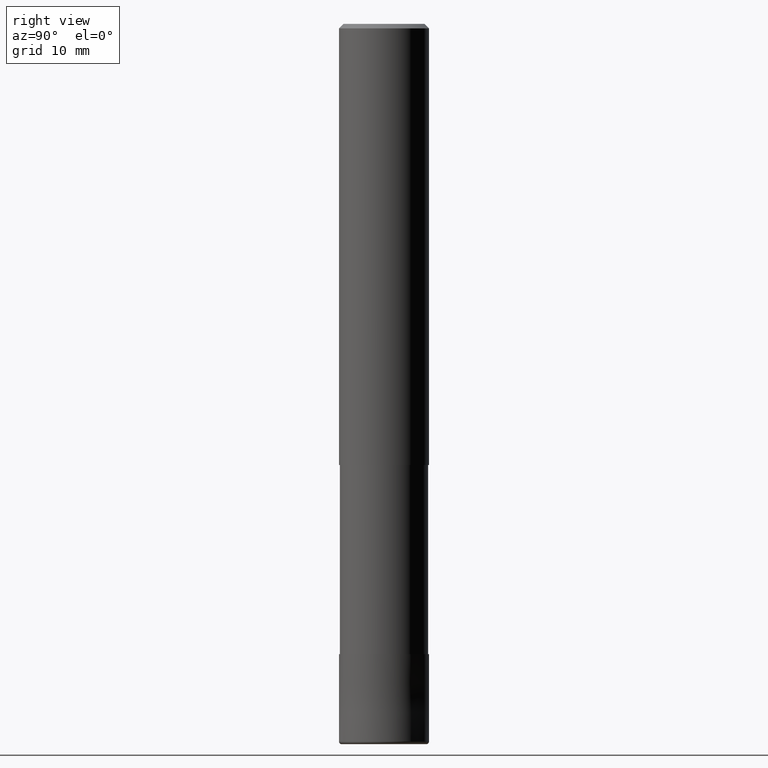
[diagram: clean part render]
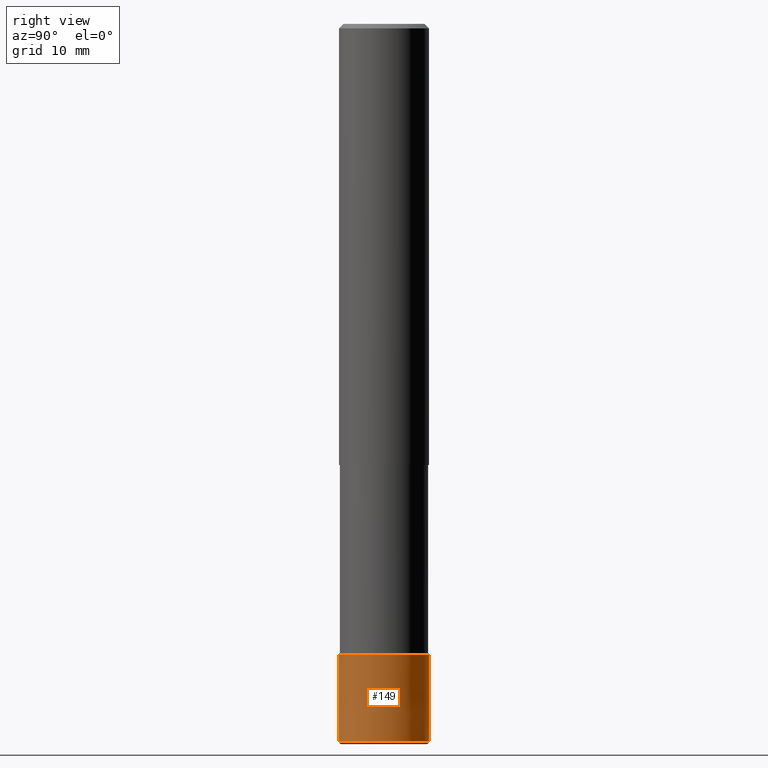
[diagram: same view with one face highlighted and labeled with its STEP entity id]
A machine part, right view. The second image highlights one B-rep face of the part: STEP entity #149.
In plain terms, the highlighted conical surface has half-angle 0.001 deg.
Its self-contained STEP definition (entity closure, byte-faithful):
#149=ADVANCED_FACE('',(#346),#347,.T.);
#171=VERTEX_POINT('',#371);
#179=EDGE_CURVE('',#279,#213,#380,.T.);
#213=VERTEX_POINT('',#420);
#221=EDGE_CURVE('',#213,#171,#429,.T.);
#231=EDGE_CURVE('',#171,#233,#439,.T.);
#233=VERTEX_POINT('',#441);
#279=VERTEX_POINT('',#490);
#281=EDGE_CURVE('',#279,#233,#492,.T.);
#346=FACE_OUTER_BOUND('',#555,.T.);
#347=CONICAL_SURFACE('',#556,4.99995,1.03092783501262E-005);
#371=CARTESIAN_POINT('',(6.12303176911189E-016,-5.0,-79.7));
#380=LINE('',#599,#600);
#420=CARTESIAN_POINT('',(0.0,5.0,-79.7));
#429=CIRCLE('',#660,5.0);
#439=LINE('',#675,#676);
#441=CARTESIAN_POINT('',(6.1229093084765E-016,-4.9999,-70.0));
#490=CARTESIAN_POINT('',(0.0,4.9999,-70.0));
#492=CIRCLE('',#742,4.9999);
#555=EDGE_LOOP('',(#810,#811,#812,#813));
#556=AXIS2_PLACEMENT_3D('',#814,#815,#816);
#599=CARTESIAN_POINT('',(-6.1229705387942E-016,4.99995,-74.85));
#600=VECTOR('',#853,1.0);
#660=AXIS2_PLACEMENT_3D('',#915,#916,#917);
#675=CARTESIAN_POINT('',(6.1229705387942E-016,-4.99995,-74.85));
#676=VECTOR('',#930,1.0);
#742=AXIS2_PLACEMENT_3D('',#989,#990,#991);
#810=ORIENTED_EDGE('',*,*,#179,.F.);
#811=ORIENTED_EDGE('',*,*,#281,.T.);
#812=ORIENTED_EDGE('',*,*,#231,.F.);
#813=ORIENTED_EDGE('',*,*,#221,.F.);
#814=CARTESIAN_POINT('',(0.0,0.0,-74.85));
#815=DIRECTION('',(0.0,-0.0,-1.0));
#816=DIRECTION('',(0.0,1.0,0.0));
#853=DIRECTION('',(-1.26248077706644E-021,1.03092783499436E-005,-0.999999999946859));
#915=CARTESIAN_POINT('',(0.0,0.0,-79.7));
#916=DIRECTION('',(0.0,0.0,-1.0));
#917=DIRECTION('',(0.0,1.0,0.0));
#930=DIRECTION('',(-1.26248077706644E-021,1.03092783499436E-005,0.999999999946859));
#989=CARTESIAN_POINT('',(0.0,0.0,-70.0));
#990=DIRECTION('',(0.0,0.0,-1.0));
#991=DIRECTION('',(0.0,1.0,0.0));